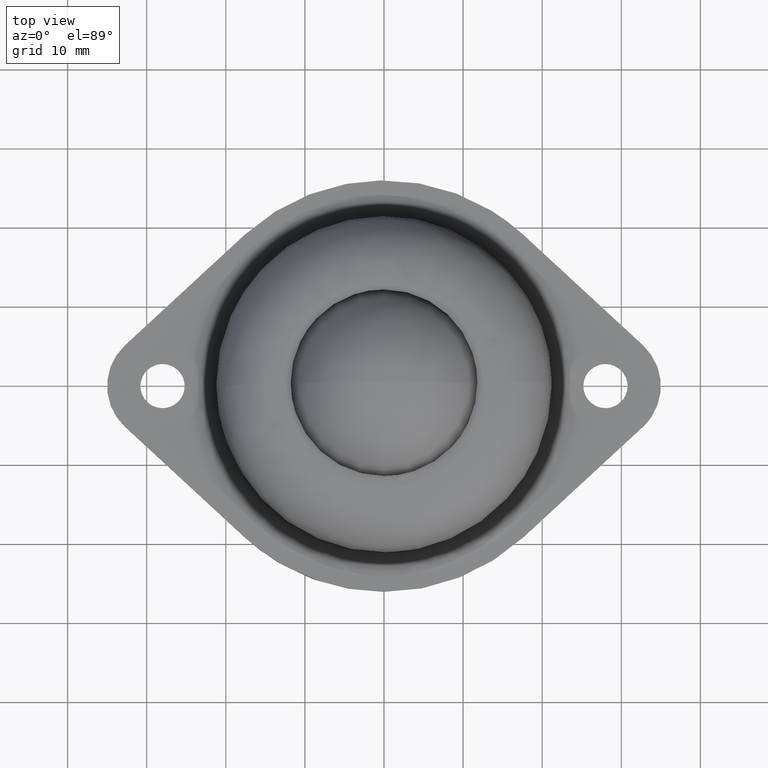
[diagram: clean part render]
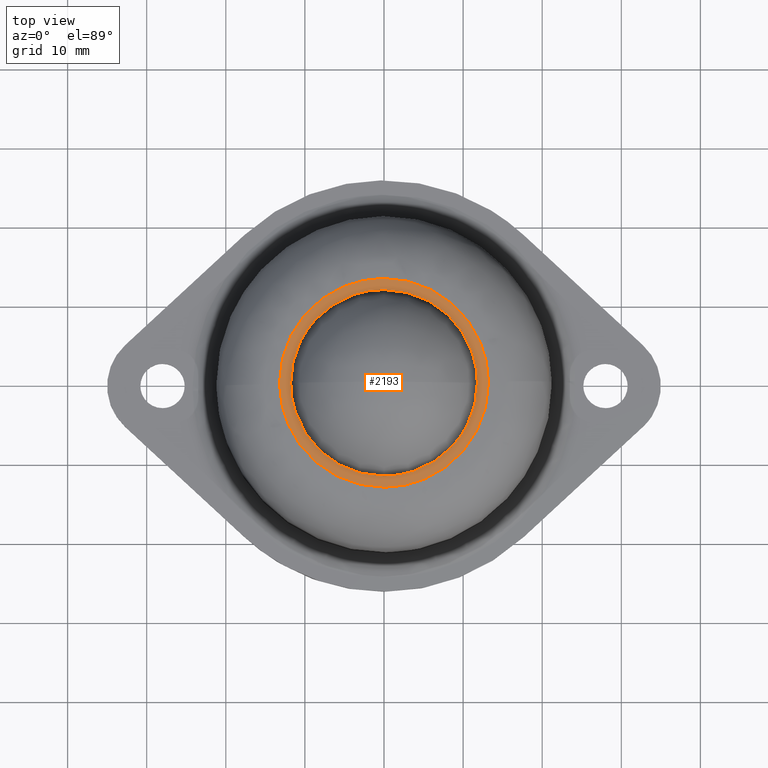
[diagram: same view with one face highlighted and labeled with its STEP entity id]
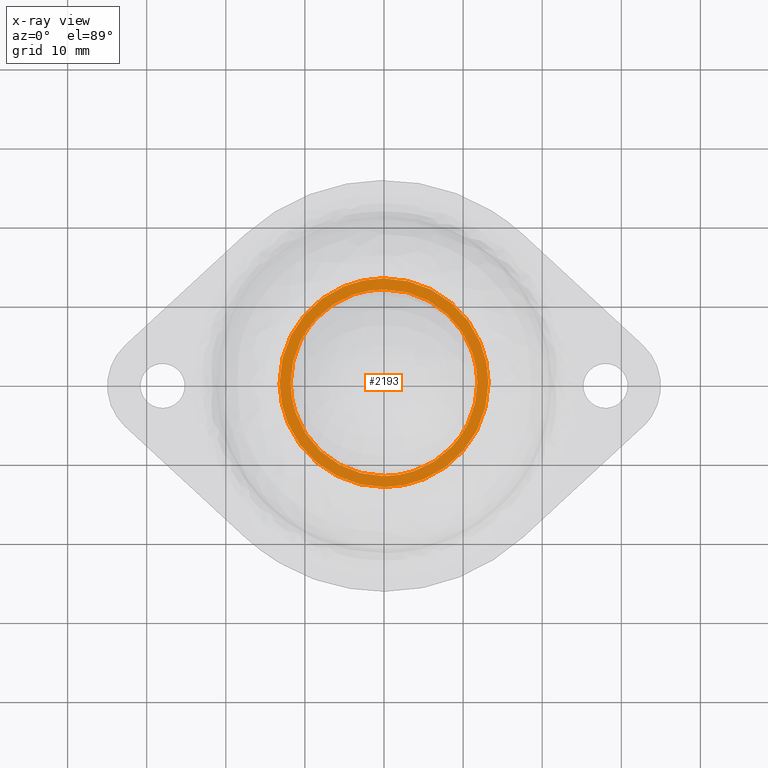
[diagram: x-ray of the same camera — body ghosted, the highlighted face saturated]
A machine part, top view. The second image highlights one B-rep face of the part: STEP entity #2193.
The next image is the same camera in x-ray: the body ghosted, the highlighted face saturated — about 0% of this face is hidden behind the body in this view.
In plain terms, the highlighted face is a freeform B-spline surface patch.
Its self-contained STEP definition (entity closure, byte-faithful):
#1878=CARTESIAN_POINT('',(-8.558187863251391,8.121417093680623,23.999999999989829));
#1879=VERTEX_POINT('',#1878);
#1880=CARTESIAN_POINT('',(0.000000829691451,11.798304963002071,24.0));
#1881=VERTEX_POINT('',#1880);
#1882=CARTESIAN_POINT('',(-8.558187863251391,8.121417093680623,23.999999999989829));
#1883=CARTESIAN_POINT('',(-7.888921021784758,8.827008522561005,23.999999999990621));
#1884=CARTESIAN_POINT('',(-6.685191253780606,9.815858731229447,23.999999999992131));
#1885=CARTESIAN_POINT('',(-4.899575778173208,10.771322963793800,23.999999999994099));
#1886=CARTESIAN_POINT('',(-3.542671744979972,11.279326135521950,23.999999999995872));
#1887=CARTESIAN_POINT('',(-1.944937084159244,11.682685733763540,23.999999999997591));
#1888=CARTESIAN_POINT('',(-0.773011212613127,11.798419641770860,23.999999999999201));
#1889=CARTESIAN_POINT('',(0.000000829691451,11.798304963002071,24.0));
#1890=B_SPLINE_CURVE_WITH_KNOTS('',3,(#1882,#1883,#1884,#1885,#1886,#1887,#1888,#1889),.UNSPECIFIED.,.F.,.U.,(4,1,1,1,1,4),(0.000000013875333,2.917464144984826,4.638027844156916,6.059342667166278,7.256254232878739,9.575262694521998),.UNSPECIFIED.);
#1891=EDGE_CURVE('',#1879,#1881,#1890,.T.);
#1944=CARTESIAN_POINT('',(8.558187863251458,-8.121417093680689,23.999999999989829));
#1945=VERTEX_POINT('',#1944);
#1951=CARTESIAN_POINT('',(11.798304963002099,0.0,24.0));
#1952=VERTEX_POINT('',#1951);
#1953=CARTESIAN_POINT('',(11.798304963002099,0.0,24.0));
#1954=CARTESIAN_POINT('',(11.798572847438161,-0.979761448134196,23.999999999998710));
#1955=CARTESIAN_POINT('',(11.605345305268470,-2.519157773368440,23.999999999996870));
#1956=CARTESIAN_POINT('',(10.869085889814381,-4.738874233432624,23.999999999994170));
#1957=CARTESIAN_POINT('',(9.916042168698517,-6.515719771561174,23.999999999991338));
#1958=CARTESIAN_POINT('',(9.007809042886258,-7.647662152059016,23.999999999990390));
#1959=CARTESIAN_POINT('',(8.558187863251458,-8.121417093680689,23.999999999989829));
#1960=B_SPLINE_CURVE_WITH_KNOTS('',3,(#1953,#1954,#1955,#1956,#1957,#1958,#1959),.UNSPECIFIED.,.F.,.U.,(4,1,1,1,4),(0.000000012005808,2.939180979449080,4.618706160290871,6.998049553704046,8.957501240158498),.UNSPECIFIED.);
#1961=EDGE_CURVE('',#1952,#1945,#1960,.T.);
#1963=CARTESIAN_POINT('',(0.000000829691451,11.798304963002071,24.0));
#1964=CARTESIAN_POINT('',(0.699801584288235,11.798368512233081,24.000000000000121));
#1965=CARTESIAN_POINT('',(1.978732384764727,11.684178648072271,23.999999999999801));
#1966=CARTESIAN_POINT('',(3.666045747424804,11.250493122306610,24.000000000000220));
#1967=CARTESIAN_POINT('',(5.302475612505742,10.590287517479890,23.999999999999531));
#1968=CARTESIAN_POINT('',(6.908840574329360,9.640846868948982,24.000000000000991));
#1969=CARTESIAN_POINT('',(8.449375364485345,8.311937831060638,23.999999999998568));
#1970=CARTESIAN_POINT('',(9.594263799600237,6.934151527200320,24.000000000000789));
#1971=CARTESIAN_POINT('',(10.570889656254160,5.349275525046047,23.999999999999410));
#1972=CARTESIAN_POINT('',(11.271792007019540,3.671781823707043,23.999999999999790));
#1973=CARTESIAN_POINT('',(11.707412474881860,1.785687195864177,24.000000000000810));
#1974=CARTESIAN_POINT('',(11.798337506353059,0.603273955540154,23.999999999999019));
#1975=CARTESIAN_POINT('',(11.798304963002099,0.0,24.0));
#1976=B_SPLINE_CURVE_WITH_KNOTS('',3,(#1963,#1964,#1965,#1966,#1967,#1968,#1969,#1970,#1971,#1972,#1973,#1974,#1975),.UNSPECIFIED.,.F.,.U.,(4,1,1,1,1,1,1,1,1,1,4),(0.000000050260308,2.099396007560657,3.836859713227737,5.212342084884842,7.384154433376420,9.411151030960086,11.293392484839931,12.741265688817441,14.985477688936720,16.722942945425011,18.532762703143579),.UNSPECIFIED.);
#1977=EDGE_CURVE('',#1881,#1952,#1976,.T.);
#2000=CARTESIAN_POINT('',(-11.798304963002099,0.0,24.0));
#2001=VERTEX_POINT('',#2000);
#2002=CARTESIAN_POINT('',(-11.798304963002099,0.0,24.0));
#2003=CARTESIAN_POINT('',(-11.798320227012351,0.513189336256014,23.999999999999378));
#2004=CARTESIAN_POINT('',(-11.726670254085420,1.609548573550954,23.999999999997979));
#2005=CARTESIAN_POINT('',(-11.374976078418360,3.304372332951063,23.999999999995911));
#2006=CARTESIAN_POINT('',(-10.816081723111971,4.794309081769169,23.999999999993928));
#2007=CARTESIAN_POINT('',(-9.931908503172114,6.466556409579441,23.999999999991999));
#2008=CARTESIAN_POINT('',(-9.168517747798925,7.478552037651976,23.999999999990290));
#2009=CARTESIAN_POINT('',(-8.558187863251391,8.121417093680623,23.999999999989829));
#2010=B_SPLINE_CURVE_WITH_KNOTS('',3,(#2002,#2003,#2004,#2005,#2006,#2007,#2008,#2009),.UNSPECIFIED.,.F.,.U.,(4,1,1,1,1,4),(0.000000012006739,1.539569658642868,3.289089110170918,5.178544093154494,6.298240985007033,8.957501240158440),.UNSPECIFIED.);
#2011=EDGE_CURVE('',#2001,#1879,#2010,.T.);
#2013=CARTESIAN_POINT('',(-0.000000829691078,-11.798304963002071,24.0));
#2014=VERTEX_POINT('',#2013);
#2015=CARTESIAN_POINT('',(-0.000000829691078,-11.798304963002071,24.0));
#2016=CARTESIAN_POINT('',(-0.482616577180238,-11.798313894381661,23.999999999999961));
#2017=CARTESIAN_POINT('',(-1.520254129438898,-11.734567589184650,24.000000000000110));
#2018=CARTESIAN_POINT('',(-2.992183578443272,-11.446476474255171,23.999999999999812));
#2019=CARTESIAN_POINT('',(-4.390843925350408,-10.979638229130050,24.000000000000309));
#2020=CARTESIAN_POINT('',(-5.857047707879347,-10.291733911251290,23.999999999999389));
#2021=CARTESIAN_POINT('',(-7.148888261925880,-9.434278168396798,24.000000000000401));
#2022=CARTESIAN_POINT('',(-8.325302870125171,-8.393961381203502,23.999999999999702));
#2023=CARTESIAN_POINT('',(-9.299477472655932,-7.319166930409781,24.000000000000380));
#2024=CARTESIAN_POINT('',(-10.285112197660460,-5.882628099605544,23.999999999999861));
#2025=CARTESIAN_POINT('',(-11.041045014764601,-4.284281956634962,23.999999999999670));
#2026=CARTESIAN_POINT('',(-11.638614533738300,-2.292378569681071,23.999999999999751));
#2027=CARTESIAN_POINT('',(-11.798496679363440,-0.892871018675854,24.000000000000611));
#2028=CARTESIAN_POINT('',(-11.798304963002099,0.0,24.0));
#2029=B_SPLINE_CURVE_WITH_KNOTS('',3,(#2015,#2016,#2017,#2018,#2019,#2020,#2021,#2022,#2023,#2024,#2025,#2026,#2027,#2028),.UNSPECIFIED.,.F.,.U.,(4,1,1,1,1,1,1,1,1,1,1,4),(0.000000050303221,1.447850321616876,3.112914585009955,4.488403245610598,5.863884458118722,7.963320398634284,9.121612050753644,10.569442640570371,12.306908589788421,14.333934993870059,15.854210616393340,18.532762703143611),.UNSPECIFIED.);
#2030=EDGE_CURVE('',#2014,#2001,#2029,.T.);
#2032=CARTESIAN_POINT('',(8.558187863251458,-8.121417093680689,23.999999999989829));
#2033=CARTESIAN_POINT('',(8.180584758726273,-8.519360437691944,23.999999999990148));
#2034=CARTESIAN_POINT('',(7.369729782271373,-9.262426831010373,23.999999999991509));
#2035=CARTESIAN_POINT('',(5.948547585349431,-10.239662525373550,23.999999999992689));
#2036=CARTESIAN_POINT('',(4.531841948892959,-10.929822768464090,23.999999999994579));
#2037=CARTESIAN_POINT('',(3.040396873212884,-11.429644450308420,23.999999999996600));
#2038=CARTESIAN_POINT('',(1.595871030347720,-11.726810439102360,23.999999999997598));
#2039=CARTESIAN_POINT('',(0.523644177923610,-11.798324779207309,23.999999999999730));
#2040=CARTESIAN_POINT('',(-0.000000829691078,-11.798304963002071,24.0));
#2041=B_SPLINE_CURVE_WITH_KNOTS('',3,(#2032,#2033,#2034,#2035,#2036,#2037,#2038,#2039,#2040),.UNSPECIFIED.,.F.,.U.,(4,1,1,1,1,1,4),(0.000000013871368,1.645747918866605,3.291498028195604,5.161664153154154,6.358566982651404,8.004327068612767,9.575262694521687),.UNSPECIFIED.);
#2042=EDGE_CURVE('',#1945,#2014,#2041,.T.);
#2090=CARTESIAN_POINT('',(-14.518679948831680,-14.518393578156960,24.0));
#2091=CARTESIAN_POINT('',(14.518680656934860,-14.518393578156960,24.0));
#2092=CARTESIAN_POINT('',(-14.518679948831680,14.518394286246171,24.0));
#2093=CARTESIAN_POINT('',(14.518680656934860,14.518394286246171,24.0));
#2094=B_SPLINE_SURFACE_WITH_KNOTS('',1,1,((#2090,#2092),(#2091,#2093)),.UNSPECIFIED.,.F.,.F.,.U.,(2,2),(2,2),(0.0,29.037360605766530),(0.0,29.036787864403131),.UNSPECIFIED.);
#2095=CARTESIAN_POINT('',(-13.198957784154921,-0.165871726724104,24.0));
#2096=VERTEX_POINT('',#2095);
#2097=CARTESIAN_POINT('',(-13.199999999999999,0.0,24.0));
#2098=VERTEX_POINT('',#2097);
#2099=CARTESIAN_POINT('',(-13.198957784154921,-0.165871726724104,24.0));
#2100=CARTESIAN_POINT('',(-13.199999999999999,0.0,24.0));
#2101=QUASI_UNIFORM_CURVE('',1,(#2099,#2100),.UNSPECIFIED.,.F.,.U.);
#2102=EDGE_CURVE('',#2096,#2098,#2101,.T.);
#2103=ORIENTED_EDGE('',*,*,#2102,.F.);
#2104=CARTESIAN_POINT('',(0.082906292588248,-13.199739639352920,24.0));
#2105=VERTEX_POINT('',#2104);
#2106=CARTESIAN_POINT('',(0.082906292588248,-13.199739639352920,24.0));
#2107=CARTESIAN_POINT('',(-0.723781987275127,-13.204894411985620,23.999999999999918));
#2108=CARTESIAN_POINT('',(-2.122809886561611,-13.084984816748671,24.000000000000249));
#2109=CARTESIAN_POINT('',(-4.267188305092271,-12.550521010324889,23.999999999999972));
#2110=CARTESIAN_POINT('',(-6.130041240009050,-11.755943094073400,23.999999999999790));
#2111=CARTESIAN_POINT('',(-7.814646924902040,-10.687609086145491,24.000000000000171));
#2112=CARTESIAN_POINT('',(-9.237171735802235,-9.490456479058532,23.999999999999758));
#2113=CARTESIAN_POINT('',(-10.605030105326129,-7.964068036706457,24.000000000000149));
#2114=CARTESIAN_POINT('',(-11.800513587458990,-6.068253459935479,23.999999999999840));
#2115=CARTESIAN_POINT('',(-12.581590549963289,-4.142502495213908,24.000000000000210));
#2116=CARTESIAN_POINT('',(-13.065172523001680,-2.181076399500805,23.999999999999609));
#2117=CARTESIAN_POINT('',(-13.189567627017309,-0.918737826713368,24.000000000000561));
#2118=CARTESIAN_POINT('',(-13.198957784154921,-0.165871726724104,24.0));
#2119=B_SPLINE_CURVE_WITH_KNOTS('',3,(#2106,#2107,#2108,#2109,#2110,#2111,#2112,#2113,#2114,#2115,#2116,#2117,#2118),.UNSPECIFIED.,.F.,.U.,(4,1,1,1,1,1,1,1,1,1,4),(0.000000048331930,2.420101110514800,4.194849823574039,6.614958408054712,8.470381214660787,10.164469250904579,12.181200001573011,14.601307547960319,16.860083137337220,18.392811101295749,20.651574397064611),.UNSPECIFIED.);
#2120=EDGE_CURVE('',#2105,#2096,#2119,.T.);
#2121=ORIENTED_EDGE('',*,*,#2120,.F.);
#2122=CARTESIAN_POINT('',(13.199999999999999,0.0,24.0));
#2123=VERTEX_POINT('',#2122);
#2124=CARTESIAN_POINT('',(13.199999999999999,0.0,24.0));
#2125=CARTESIAN_POINT('',(13.200184963308560,-0.994953856453879,23.999999999999972));
#2126=CARTESIAN_POINT('',(13.028913113372781,-2.500698079969279,24.000000000000071));
#2127=CARTESIAN_POINT('',(12.409602202248051,-4.620825790561592,23.999999999999972));
#2128=CARTESIAN_POINT('',(11.714050146368351,-6.171388827962733,23.999999999999940));
#2129=CARTESIAN_POINT('',(10.704613336599330,-7.795336487877187,24.000000000000490));
#2130=CARTESIAN_POINT('',(9.428133705868605,-9.330646343694966,23.999999999999389));
#2131=CARTESIAN_POINT('',(7.764183382883313,-10.749380473020310,24.000000000000188));
#2132=CARTESIAN_POINT('',(6.122862903287564,-11.735471202411810,24.000000000000359));
#2133=CARTESIAN_POINT('',(4.346926781670305,-12.513081877491480,23.999999999997460));
#2134=CARTESIAN_POINT('',(2.394565191260480,-13.051461016210220,24.000000000006789));
#2135=CARTESIAN_POINT('',(0.835814248163721,-13.195056110056671,23.999999999996369));
#2136=CARTESIAN_POINT('',(0.082906292588248,-13.199739639352920,24.0));
#2137=B_SPLINE_CURVE_WITH_KNOTS('',3,(#2124,#2125,#2126,#2127,#2128,#2129,#2130,#2131,#2132,#2133,#2134,#2135,#2136),.UNSPECIFIED.,.F.,.U.,(4,1,1,1,1,1,1,1,1,1,4),(0.000000048358736,2.984803744072988,4.517541688347571,6.614978400880244,8.067055235412347,10.245177425978730,12.584588552770301,14.601351678477720,15.972751237139381,18.392866691214572,20.651636813693742),.UNSPECIFIED.);
#2138=EDGE_CURVE('',#2123,#2105,#2137,.T.);
#2139=ORIENTED_EDGE('',*,*,#2138,.F.);
#2140=CARTESIAN_POINT('',(13.198957784154921,0.165871726724102,24.0));
#2141=VERTEX_POINT('',#2140);
#2142=CARTESIAN_POINT('',(13.198957784154921,0.165871726724102,24.0));
#2143=CARTESIAN_POINT('',(13.199999999999999,0.0,24.0));
#2144=QUASI_UNIFORM_CURVE('',1,(#2142,#2143),.UNSPECIFIED.,.F.,.U.);
#2145=EDGE_CURVE('',#2141,#2123,#2144,.T.);
#2146=ORIENTED_EDGE('',*,*,#2145,.F.);
#2147=CARTESIAN_POINT('',(-0.082906292588280,13.199739639352920,24.000000000000011));
#2148=VERTEX_POINT('',#2147);
#2149=CARTESIAN_POINT('',(-0.082906292588280,13.199739639352920,24.000000000000011));
#2150=CARTESIAN_POINT('',(0.454882842363798,13.203130861495961,23.999999999999961));
#2151=CARTESIAN_POINT('',(1.584673825963870,13.141108982467911,24.000000000000291));
#2152=CARTESIAN_POINT('',(3.201172025365566,12.841662750802691,23.999999999999460));
#2153=CARTESIAN_POINT('',(4.689692742454557,12.367368431876971,24.000000000000838));
#2154=CARTESIAN_POINT('',(6.067468185277897,11.754635358534779,23.999999999999542));
#2155=CARTESIAN_POINT('',(7.437668819360782,10.949032045783490,24.000000000000391));
#2156=CARTESIAN_POINT('',(8.672661647684851,9.990803042593976,23.999999999999549));
#2157=CARTESIAN_POINT('',(9.979349489879482,8.708587362459131,24.000000000000949));
#2158=CARTESIAN_POINT('',(11.063964965078091,7.294435532750293,23.999999999997609));
#2159=CARTESIAN_POINT('',(11.931582613303750,5.711613770669857,24.000000000002292));
#2160=CARTESIAN_POINT('',(12.563872349071870,4.166551472204845,23.999999999998341));
#2161=CARTESIAN_POINT('',(13.049334294906830,2.342238380491585,24.000000000001251));
#2162=CARTESIAN_POINT('',(13.189552886789960,0.918736362685605,23.999999999999421));
#2163=CARTESIAN_POINT('',(13.198957784154921,0.165871726724102,24.0));
#2164=B_SPLINE_CURVE_WITH_KNOTS('',3,(#2149,#2150,#2151,#2152,#2153,#2154,#2155,#2156,#2157,#2158,#2159,#2160,#2161,#2162,#2163),.UNSPECIFIED.,.F.,.U.,(4,1,1,1,1,1,1,1,1,1,1,1,4),(0.000000048330435,1.613401244678471,3.388146182976833,4.920881741538409,6.292283827572305,7.905697276054193,9.680431331561280,10.971139840467391,13.391253697549359,15.004658657260871,16.376054071067092,18.392811101295809,20.651574397064660),.UNSPECIFIED.);
#2165=EDGE_CURVE('',#2148,#2141,#2164,.T.);
#2166=ORIENTED_EDGE('',*,*,#2165,.F.);
#2167=CARTESIAN_POINT('',(-13.199999999999999,0.0,24.0));
#2168=CARTESIAN_POINT('',(-13.200190451064509,0.968060029411774,23.999999999999940));
#2169=CARTESIAN_POINT('',(-13.033551445764290,2.473809569095353,24.000000000000099));
#2170=CARTESIAN_POINT('',(-12.420660275488791,4.596213304777611,23.999999999999979));
#2171=CARTESIAN_POINT('',(-11.658847501972820,6.294453410049940,24.000000000000011));
#2172=CARTESIAN_POINT('',(-10.638310830942171,7.881645664283914,24.000000000000099));
#2173=CARTESIAN_POINT('',(-9.607006928446653,9.091527634372445,23.999999999999911));
#2174=CARTESIAN_POINT('',(-8.313099043372040,10.308974311883221,23.999999999999989));
#2175=CARTESIAN_POINT('',(-6.617776492532683,11.512772236391950,24.000000000000320));
#2176=CARTESIAN_POINT('',(-4.479108755887308,12.488312788004480,23.999999999999741));
#2177=CARTESIAN_POINT('',(-2.260172235009975,13.063784216655471,24.000000000000600));
#2178=CARTESIAN_POINT('',(-0.835817709264143,13.195068741564990,23.999999999999460));
#2179=CARTESIAN_POINT('',(-0.082906292588280,13.199739639352920,24.000000000000011));
#2180=B_SPLINE_CURVE_WITH_KNOTS('',3,(#2167,#2168,#2169,#2170,#2171,#2172,#2173,#2174,#2175,#2176,#2177,#2178,#2179),.UNSPECIFIED.,.F.,.U.,(4,1,1,1,1,1,1,1,1,1,4),(0.000000048365269,2.904121617797919,4.517541688351233,6.614978400882466,8.470406815404287,10.164499971814720,11.374530612695059,13.794647383691681,16.376103565506568,18.392866691214550,20.651636813693720),.UNSPECIFIED.);
#2181=EDGE_CURVE('',#2098,#2148,#2180,.T.);
#2182=ORIENTED_EDGE('',*,*,#2181,.F.);
#2183=EDGE_LOOP('',(#2103,#2121,#2139,#2146,#2166,#2182));
#2184=FACE_OUTER_BOUND('',#2183,.T.);
#2185=ORIENTED_EDGE('',*,*,#1977,.T.);
#2186=ORIENTED_EDGE('',*,*,#1961,.T.);
#2187=ORIENTED_EDGE('',*,*,#2042,.T.);
#2188=ORIENTED_EDGE('',*,*,#2030,.T.);
#2189=ORIENTED_EDGE('',*,*,#2011,.T.);
#2190=ORIENTED_EDGE('',*,*,#1891,.T.);
#2191=EDGE_LOOP('',(#2185,#2186,#2187,#2188,#2189,#2190));
#2192=FACE_BOUND('',#2191,.T.);
#2193=ADVANCED_FACE('',(#2184,#2192),#2094,.T.);